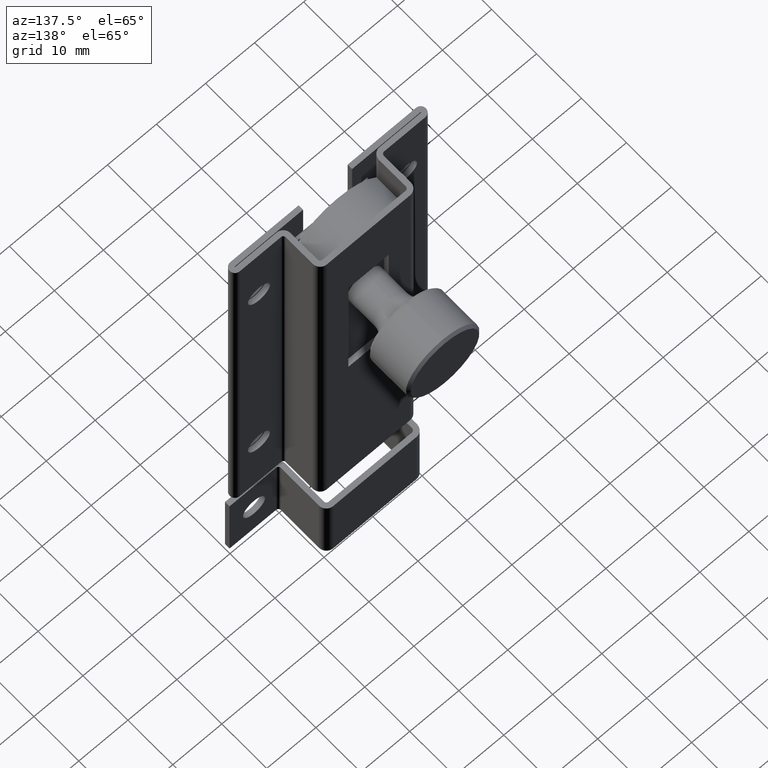
[diagram: clean part render]
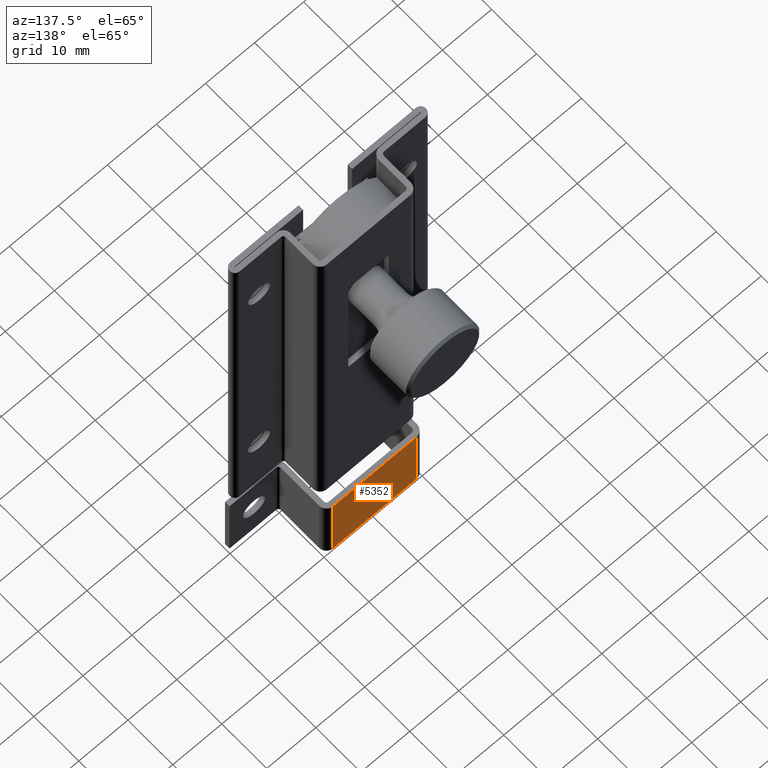
[diagram: same view with one face highlighted and labeled with its STEP entity id]
A machine part, auxiliary view. The second image highlights one B-rep face of the part: STEP entity #5352.
In plain terms, the highlighted planar face has unit normal (0, -1, 0).
Its self-contained STEP definition (entity closure, byte-faithful):
#97 = DIRECTION ( 'NONE',  ( 1.000000000000000000, 0.000000000000000000, 0.000000000000000000 ) ) ;
#788 = DIRECTION ( 'NONE',  ( 0.000000000000000000, -0.000000000000000000, -1.000000000000000000 ) ) ;
#1079 = LINE ( 'NONE', #1598, #12669 ) ;
#1356 = CARTESIAN_POINT ( 'NONE',  ( -9.000000000000000000, 11.50000000000000000, 7.500000000000000000 ) ) ;
#1598 = CARTESIAN_POINT ( 'NONE',  ( -8.499999999999998224, 11.50000000000000000, -7.500000000000000000 ) ) ;
#2028 = ORIENTED_EDGE ( 'NONE', *, *, #15990, .F. ) ;
#2188 = DIRECTION ( 'NONE',  ( 0.000000000000000000, -1.000000000000000000, 0.000000000000000000 ) ) ;
#2395 = VECTOR ( 'NONE', #4822, 1000.000000000000000 ) ;
#2733 = ORIENTED_EDGE ( 'NONE', *, *, #3822, .T. ) ;
#3387 = ORIENTED_EDGE ( 'NONE', *, *, #5606, .T. ) ;
#3541 = EDGE_LOOP ( 'NONE', ( #2733, #11316, #2028, #3387 ) ) ;
#3822 = EDGE_CURVE ( 'NONE', #6334, #16281, #7292, .T. ) ;
#3917 = VERTEX_POINT ( 'NONE', #11461 ) ;
#4177 = LINE ( 'NONE', #15826, #7916 ) ;
#4822 = DIRECTION ( 'NONE',  ( 0.000000000000000000, 0.000000000000000000, 1.000000000000000000 ) ) ;
#5352 = ADVANCED_FACE ( 'NONE', ( #11701 ), #13481, .F. ) ;
#5606 = EDGE_CURVE ( 'NONE', #11079, #6334, #1079, .T. ) ;
#5724 = CARTESIAN_POINT ( 'NONE',  ( -8.499999999999998224, 11.50000000000000000, -7.500000000000000000 ) ) ;
#6334 = VERTEX_POINT ( 'NONE', #15713 ) ;
#7292 = LINE ( 'NONE', #1356, #12428 ) ;
#7916 = VECTOR ( 'NONE', #9623, 1000.000000000000000 ) ;
#8147 = AXIS2_PLACEMENT_3D ( 'NONE', #9720, #2188, #788 ) ;
#9623 = DIRECTION ( 'NONE',  ( 1.000000000000000000, 0.000000000000000000, 0.000000000000000000 ) ) ;
#9720 = CARTESIAN_POINT ( 'NONE',  ( -9.000000000000000000, 11.50000000000000000, -7.500000000000000000 ) ) ;
#10224 = EDGE_CURVE ( 'NONE', #3917, #16281, #14450, .T. ) ;
#10483 = DIRECTION ( 'NONE',  ( 0.000000000000000000, 0.000000000000000000, 1.000000000000000000 ) ) ;
#11079 = VERTEX_POINT ( 'NONE', #5724 ) ;
#11316 = ORIENTED_EDGE ( 'NONE', *, *, #10224, .F. ) ;
#11461 = CARTESIAN_POINT ( 'NONE',  ( 8.499999999999998224, 11.50000000000000000, -7.500000000000000000 ) ) ;
#11701 = FACE_OUTER_BOUND ( 'NONE', #3541, .T. ) ;
#12308 = CARTESIAN_POINT ( 'NONE',  ( 8.499999999999998224, 11.50000000000000000, -7.500000000000000000 ) ) ;
#12428 = VECTOR ( 'NONE', #97, 1000.000000000000000 ) ;
#12669 = VECTOR ( 'NONE', #10483, 1000.000000000000000 ) ;
#13481 = PLANE ( 'NONE',  #8147 ) ;
#14450 = LINE ( 'NONE', #12308, #2395 ) ;
#15193 = CARTESIAN_POINT ( 'NONE',  ( 8.499999999999998224, 11.50000000000000000, 7.500000000000000000 ) ) ;
#15713 = CARTESIAN_POINT ( 'NONE',  ( -8.499999999999998224, 11.50000000000000000, 7.500000000000000000 ) ) ;
#15826 = CARTESIAN_POINT ( 'NONE',  ( -9.000000000000000000, 11.50000000000000000, -7.500000000000000000 ) ) ;
#15990 = EDGE_CURVE ( 'NONE', #11079, #3917, #4177, .T. ) ;
#16281 = VERTEX_POINT ( 'NONE', #15193 ) ;